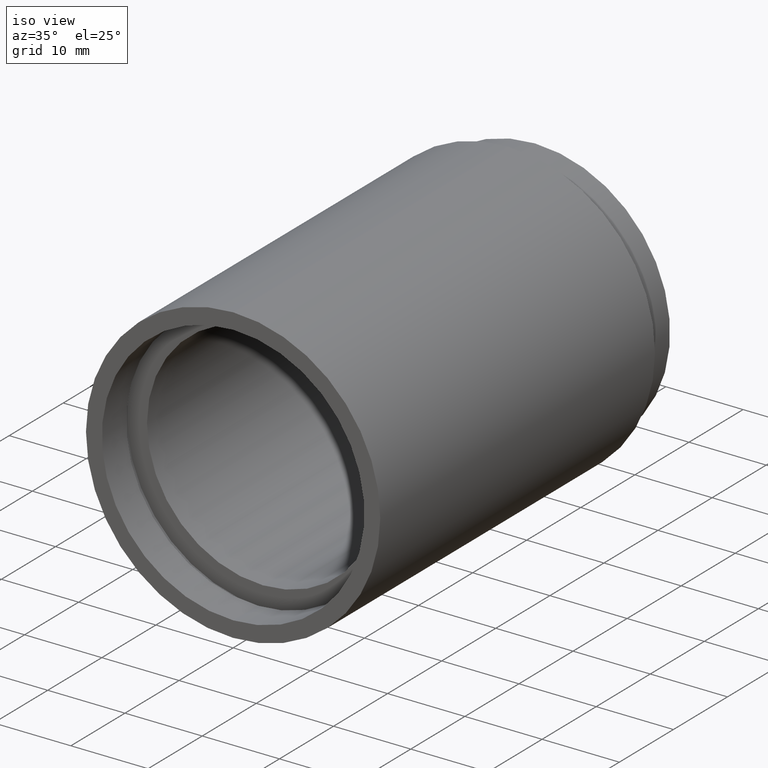
[diagram: clean part render]
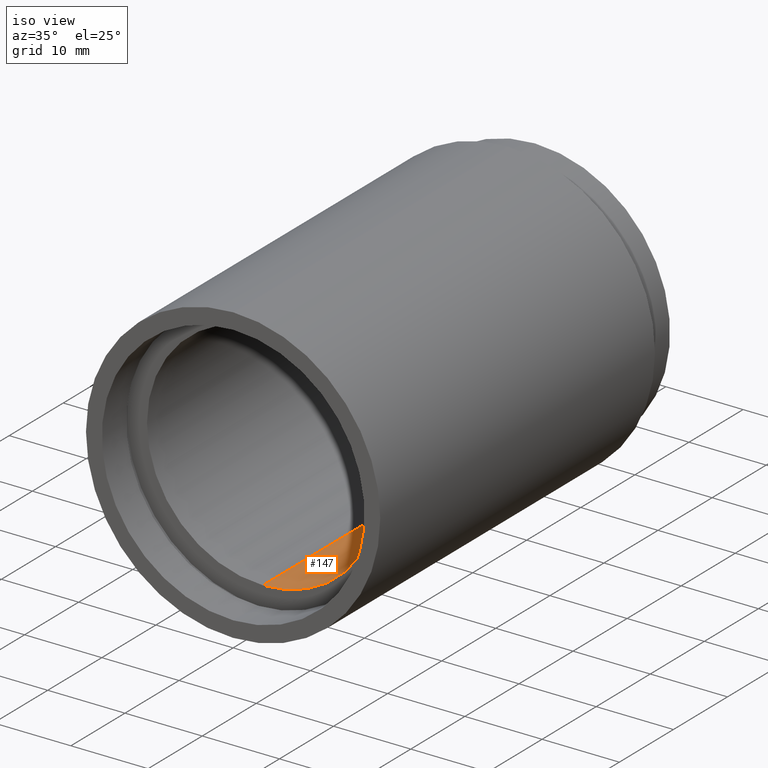
[diagram: same view with one face highlighted and labeled with its STEP entity id]
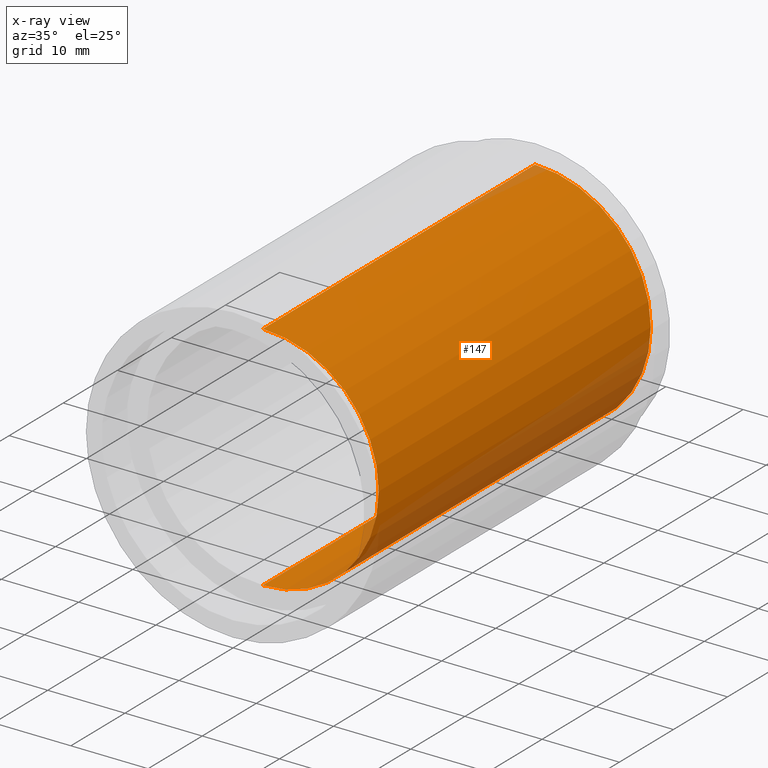
[diagram: x-ray of the same camera — body ghosted, the highlighted face saturated]
A machine part, iso view. The second image highlights one B-rep face of the part: STEP entity #147.
The next image is the same camera in x-ray: the body ghosted, the highlighted face saturated — about 12% of this face is hidden behind the body in this view.
In plain terms, the highlighted cylindrical surface (partial cylindrical patch) has radius 15 mm, axis along (-0, 1, -0).
Its self-contained STEP definition (entity closure, byte-faithful):
#30 = DIRECTION ( 'NONE',  ( -0.0000000000000000000, 1.000000000000000000, -0.0000000000000000000 ) ) ;
#32 = EDGE_CURVE ( 'NONE', #141, #462, #463, .T. ) ;
#41 = VERTEX_POINT ( 'NONE', #339 ) ;
#42 = EDGE_CURVE ( 'NONE', #462, #335, #537, .T. ) ;
#56 = DIRECTION ( 'NONE',  ( 0.0000000000000000000, 0.0000000000000000000, 1.000000000000000000 ) ) ;
#73 = CARTESIAN_POINT ( 'NONE',  ( 1.836970198721032000E-015, 5.499999999999976900, -15.00000000000001600 ) ) ;
#90 = CARTESIAN_POINT ( 'NONE',  ( 0.0000000000000000000, 5.499999999999976900, 0.0000000000000000000 ) ) ;
#95 = AXIS2_PLACEMENT_3D ( 'NONE', #220, #30, #223 ) ;
#129 = AXIS2_PLACEMENT_3D ( 'NONE', #535, #490, #56 ) ;
#134 = EDGE_CURVE ( 'NONE', #141, #41, #577, .T. ) ;
#141 = VERTEX_POINT ( 'NONE', #190 ) ;
#147 = ADVANCED_FACE ( 'NONE', ( #505 ), #272, .F. ) ;
#159 = EDGE_LOOP ( 'NONE', ( #540, #423, #445, #182 ) ) ;
#182 = ORIENTED_EDGE ( 'NONE', *, *, #466, .T. ) ;
#190 = CARTESIAN_POINT ( 'NONE',  ( 0.0000000000000000000, 5.499999999999976900, 15.00000000000001600 ) ) ;
#220 = CARTESIAN_POINT ( 'NONE',  ( 0.0000000000000000000, 55.79999999999999000, 0.0000000000000000000 ) ) ;
#223 = DIRECTION ( 'NONE',  ( 0.0000000000000000000, 0.0000000000000000000, 1.000000000000000000 ) ) ;
#272 = CYLINDRICAL_SURFACE ( 'NONE', #129, 15.00000000000001600 ) ;
#293 = DIRECTION ( 'NONE',  ( -0.0000000000000000000, 1.000000000000000000, -0.0000000000000000000 ) ) ;
#333 = AXIS2_PLACEMENT_3D ( 'NONE', #90, #293, #424 ) ;
#335 = VERTEX_POINT ( 'NONE', #498 ) ;
#339 = CARTESIAN_POINT ( 'NONE',  ( 0.0000000000000000000, 55.79999999999999000, 15.00000000000001800 ) ) ;
#341 = CIRCLE ( 'NONE', #95, 15.00000000000001800 ) ;
#383 = VECTOR ( 'NONE', #481, 1000.000000000000000 ) ;
#423 = ORIENTED_EDGE ( 'NONE', *, *, #32, .F. ) ;
#424 = DIRECTION ( 'NONE',  ( 0.0000000000000000000, 0.0000000000000000000, 1.000000000000000000 ) ) ;
#443 = CARTESIAN_POINT ( 'NONE',  ( 0.0000000000000000000, 161.3761669434274500, 15.00000000000001600 ) ) ;
#445 = ORIENTED_EDGE ( 'NONE', *, *, #134, .T. ) ;
#462 = VERTEX_POINT ( 'NONE', #73 ) ;
#463 = CIRCLE ( 'NONE', #333, 15.00000000000001600 ) ;
#466 = EDGE_CURVE ( 'NONE', #41, #335, #341, .T. ) ;
#470 = DIRECTION ( 'NONE',  ( -0.0000000000000000000, 1.000000000000000000, -0.0000000000000000000 ) ) ;
#474 = CARTESIAN_POINT ( 'NONE',  ( 1.836970198721032000E-015, 161.3761669434274500, -15.00000000000001600 ) ) ;
#481 = DIRECTION ( 'NONE',  ( -0.0000000000000000000, 1.000000000000000000, -0.0000000000000000000 ) ) ;
#490 = DIRECTION ( 'NONE',  ( -0.0000000000000000000, 1.000000000000000000, -0.0000000000000000000 ) ) ;
#495 = VECTOR ( 'NONE', #470, 1000.000000000000000 ) ;
#498 = CARTESIAN_POINT ( 'NONE',  ( 1.836970198721032300E-015, 55.79999999999999000, -15.00000000000002000 ) ) ;
#505 = FACE_OUTER_BOUND ( 'NONE', #159, .T. ) ;
#535 = CARTESIAN_POINT ( 'NONE',  ( 0.0000000000000000000, 161.3761669434274500, 0.0000000000000000000 ) ) ;
#537 = LINE ( 'NONE', #474, #495 ) ;
#540 = ORIENTED_EDGE ( 'NONE', *, *, #42, .F. ) ;
#577 = LINE ( 'NONE', #443, #383 ) ;